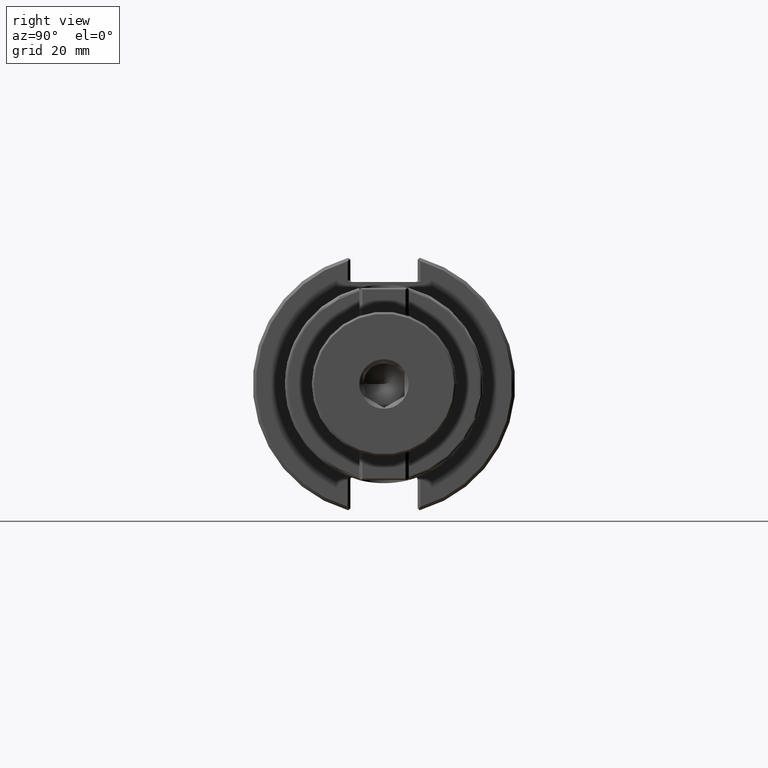
[diagram: clean part render]
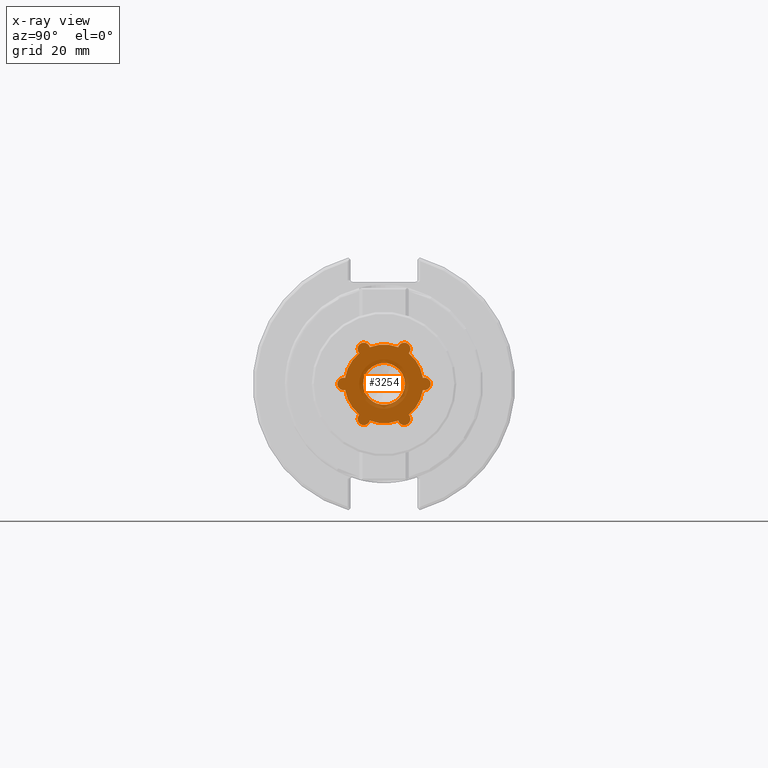
[diagram: x-ray — body ghosted, one internal face saturated and labeled with its STEP entity id]
A machine part, right view, then the same camera in x-ray: the body is ghosted and one INTERNAL B-rep face — a face not visible from any outside direction — is saturated and labeled: STEP entity #3254.
In plain terms, the highlighted planar face has unit normal (-1, -0, 0).
Its self-contained STEP definition (entity closure, byte-faithful):
#167=FACE_BOUND('',#649,.T.);
#192=PLANE('',#3604);
#464=FACE_OUTER_BOUND('',#648,.T.);
#648=EDGE_LOOP('',(#2345,#2346,#2347,#2348,#2349,#2350,#2351,#2352,#2353,
#2354,#2355,#2356));
#649=EDGE_LOOP('',(#2357));
#1296=CIRCLE('',#3554,0.375);
#1297=CIRCLE('',#3556,0.375);
#1299=CIRCLE('',#3559,0.375);
#1301=CIRCLE('',#3562,0.375);
#1303=CIRCLE('',#3565,0.375);
#1319=CIRCLE('',#3583,0.375);
#1321=CIRCLE('',#3586,0.0590000000000004);
#1323=CIRCLE('',#3589,0.0590000000000004);
#1325=CIRCLE('',#3592,0.0590000000000004);
#1327=CIRCLE('',#3595,0.0590000000000004);
#1329=CIRCLE('',#3598,0.0590000000000004);
#1331=CIRCLE('',#3601,0.0590000000000004);
#1332=CIRCLE('',#3603,0.19893701);
#1452=VERTEX_POINT('',#4858);
#1454=VERTEX_POINT('',#4862);
#1455=VERTEX_POINT('',#4866);
#1457=VERTEX_POINT('',#4869);
#1459=VERTEX_POINT('',#4875);
#1461=VERTEX_POINT('',#4878);
#1463=VERTEX_POINT('',#4884);
#1465=VERTEX_POINT('',#4887);
#1467=VERTEX_POINT('',#4893);
#1469=VERTEX_POINT('',#4896);
#1480=VERTEX_POINT('',#4926);
#1481=VERTEX_POINT('',#4928);
#1488=VERTEX_POINT('',#4962);
#1768=EDGE_CURVE('',#1454,#1452,#1296,.T.);
#1770=EDGE_CURVE('',#1455,#1457,#1297,.T.);
#1774=EDGE_CURVE('',#1459,#1461,#1299,.T.);
#1778=EDGE_CURVE('',#1463,#1465,#1301,.T.);
#1782=EDGE_CURVE('',#1467,#1469,#1303,.T.);
#1800=EDGE_CURVE('',#1480,#1481,#1319,.T.);
#1804=EDGE_CURVE('',#1480,#1452,#1321,.T.);
#1807=EDGE_CURVE('',#1467,#1481,#1323,.T.);
#1810=EDGE_CURVE('',#1463,#1469,#1325,.T.);
#1813=EDGE_CURVE('',#1459,#1465,#1327,.T.);
#1816=EDGE_CURVE('',#1455,#1461,#1329,.T.);
#1819=EDGE_CURVE('',#1454,#1457,#1331,.T.);
#1820=EDGE_CURVE('',#1488,#1488,#1332,.T.);
#2345=ORIENTED_EDGE('',*,*,#1804,.T.);
#2346=ORIENTED_EDGE('',*,*,#1768,.F.);
#2347=ORIENTED_EDGE('',*,*,#1819,.T.);
#2348=ORIENTED_EDGE('',*,*,#1770,.F.);
#2349=ORIENTED_EDGE('',*,*,#1816,.T.);
#2350=ORIENTED_EDGE('',*,*,#1774,.F.);
#2351=ORIENTED_EDGE('',*,*,#1813,.T.);
#2352=ORIENTED_EDGE('',*,*,#1778,.F.);
#2353=ORIENTED_EDGE('',*,*,#1810,.T.);
#2354=ORIENTED_EDGE('',*,*,#1782,.F.);
#2355=ORIENTED_EDGE('',*,*,#1807,.T.);
#2356=ORIENTED_EDGE('',*,*,#1800,.F.);
#2357=ORIENTED_EDGE('',*,*,#1820,.F.);
#3254=ADVANCED_FACE('',(#464,#167),#192,.F.);
#3554=AXIS2_PLACEMENT_3D('',#4864,#3923,#3924);
#3556=AXIS2_PLACEMENT_3D('',#4870,#3928,#3929);
#3559=AXIS2_PLACEMENT_3D('',#4879,#3936,#3937);
#3562=AXIS2_PLACEMENT_3D('',#4888,#3944,#3945);
#3565=AXIS2_PLACEMENT_3D('',#4897,#3952,#3953);
#3583=AXIS2_PLACEMENT_3D('',#4929,#3990,#3991);
#3586=AXIS2_PLACEMENT_3D('',#4935,#3998,#3999);
#3589=AXIS2_PLACEMENT_3D('',#4940,#4005,#4006);
#3592=AXIS2_PLACEMENT_3D('',#4945,#4012,#4013);
#3595=AXIS2_PLACEMENT_3D('',#4950,#4019,#4020);
#3598=AXIS2_PLACEMENT_3D('',#4955,#4026,#4027);
#3601=AXIS2_PLACEMENT_3D('',#4960,#4033,#4034);
#3603=AXIS2_PLACEMENT_3D('',#4963,#4037,#4038);
#3604=AXIS2_PLACEMENT_3D('',#4965,#4040,#4041);
#3923=DIRECTION('center_axis',(-1.,0.,0.));
#3924=DIRECTION('ref_axis',(0.,0.,1.));
#3928=DIRECTION('center_axis',(-1.,0.,0.));
#3929=DIRECTION('ref_axis',(0.,0.,1.));
#3936=DIRECTION('center_axis',(-1.,0.,0.));
#3937=DIRECTION('ref_axis',(0.,0.,1.));
#3944=DIRECTION('center_axis',(-1.,0.,0.));
#3945=DIRECTION('ref_axis',(0.,0.,1.));
#3952=DIRECTION('center_axis',(-1.,0.,0.));
#3953=DIRECTION('ref_axis',(0.,0.,1.));
#3990=DIRECTION('center_axis',(-1.,0.,0.));
#3991=DIRECTION('ref_axis',(0.,0.,1.));
#3998=DIRECTION('center_axis',(1.,6.02890591705216E-17,-1.0442371362387E-16));
#3999=DIRECTION('ref_axis',(0.,-0.866025403784439,-0.499999999999999));
#4005=DIRECTION('center_axis',(1.,-6.02890591705217E-17,-1.0442371362387E-16));
#4006=DIRECTION('ref_axis',(0.,-0.866025403784438,0.5));
#4012=DIRECTION('center_axis',(1.,-1.20578118341043E-16,1.4766560667357E-32));
#4013=DIRECTION('ref_axis',(0.,1.22464679914735E-16,1.));
#4019=DIRECTION('center_axis',(1.,-6.02890591705217E-17,1.0442371362387E-16));
#4020=DIRECTION('ref_axis',(0.,0.866025403784439,0.5));
#4026=DIRECTION('center_axis',(1.,6.02890591705217E-17,1.0442371362387E-16));
#4027=DIRECTION('ref_axis',(0.,0.866025403784439,-0.5));
#4033=DIRECTION('center_axis',(1.,1.20578118341043E-16,0.));
#4034=DIRECTION('ref_axis',(0.,0.,-1.));
#4037=DIRECTION('center_axis',(1.,0.,0.));
#4038=DIRECTION('ref_axis',(-1.81410118788055E-16,1.,0.));
#4040=DIRECTION('center_axis',(-1.,-6.02890591705216E-17,1.0442371362387E-16));
#4041=DIRECTION('ref_axis',(0.,0.866025403784439,0.499999999999999));
#4858=CARTESIAN_POINT('',(1.34527559055118,0.234856803744687,-0.292347877937962));
#4862=CARTESIAN_POINT('',(1.34527559055118,0.370609090909091,-0.0572180193255346));
#4864=CARTESIAN_POINT('Origin',(1.34527559055118,0.,0.));
#4866=CARTESIAN_POINT('',(1.34527559055118,0.234856803744687,0.292347877937962));
#4869=CARTESIAN_POINT('',(1.34527559055118,0.370609090909091,0.0572180193255346));
#4870=CARTESIAN_POINT('Origin',(1.34527559055118,0.,0.));
#4875=CARTESIAN_POINT('',(1.34527559055118,-0.135752287164403,0.349565897263496));
#4878=CARTESIAN_POINT('',(1.34527559055118,0.135752287164404,0.349565897263496));
#4879=CARTESIAN_POINT('Origin',(1.34527559055118,0.,0.));
#4884=CARTESIAN_POINT('',(1.34527559055118,-0.370609090909091,0.0572180193255346));
#4887=CARTESIAN_POINT('',(1.34527559055118,-0.234856803744687,0.292347877937962));
#4888=CARTESIAN_POINT('Origin',(1.34527559055118,0.,0.));
#4893=CARTESIAN_POINT('',(1.34527559055118,-0.234856803744687,-0.292347877937962));
#4896=CARTESIAN_POINT('',(1.34527559055118,-0.370609090909091,-0.0572180193255345));
#4897=CARTESIAN_POINT('Origin',(1.34527559055118,0.,0.));
#4926=CARTESIAN_POINT('',(1.34527559055118,0.135752287164403,-0.349565897263496));
#4928=CARTESIAN_POINT('',(1.34527559055118,-0.135752287164404,-0.349565897263496));
#4929=CARTESIAN_POINT('Origin',(1.34527559055118,0.,0.));
#4935=CARTESIAN_POINT('Origin',(1.34527559055118,0.1925,-0.333419780457009));
#4940=CARTESIAN_POINT('Origin',(1.34527559055118,-0.1925,-0.333419780457008));
#4945=CARTESIAN_POINT('Origin',(1.34527559055118,-0.385,4.7148901767173E-17));
#4950=CARTESIAN_POINT('Origin',(1.34527559055118,-0.1925,0.333419780457009));
#4955=CARTESIAN_POINT('Origin',(1.34527559055118,0.1925,0.333419780457008));
#4960=CARTESIAN_POINT('Origin',(1.34527559055118,0.385,0.));
#4962=CARTESIAN_POINT('',(1.34527559055118,-0.19893701,-2.43627572528445E-17));
#4963=CARTESIAN_POINT('Origin',(1.34527559055118,-1.75625536445423E-16,
0.));
#4965=CARTESIAN_POINT('Origin',(1.34527559055118,0.222,-0.384515279280291));